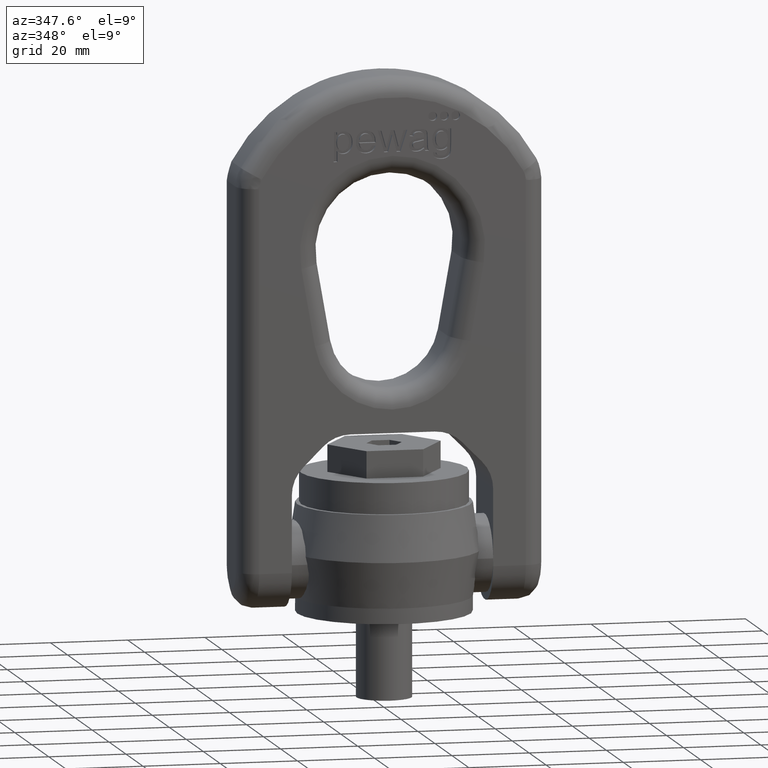
[diagram: clean part render]
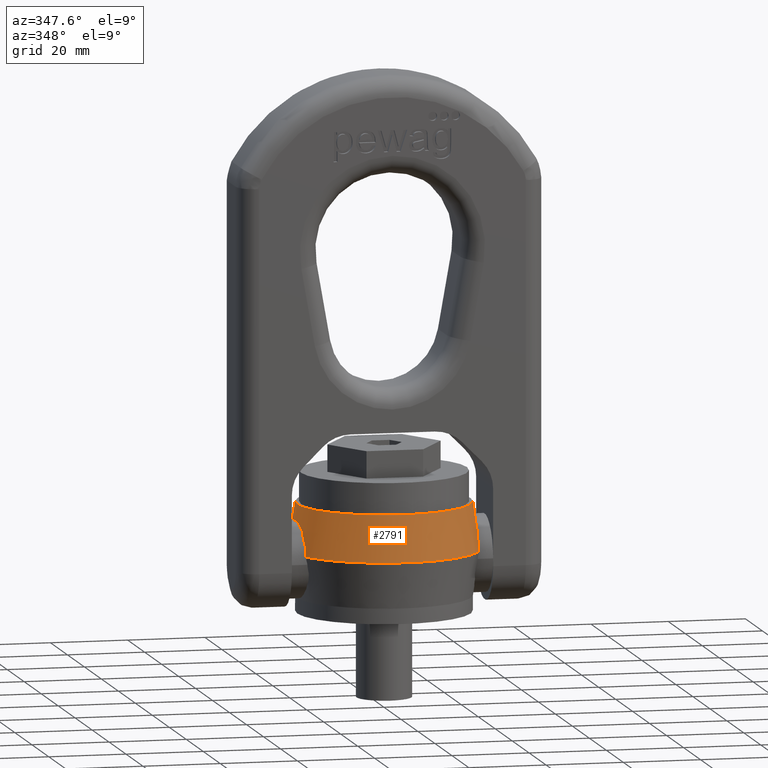
[diagram: same view with one face highlighted and labeled with its STEP entity id]
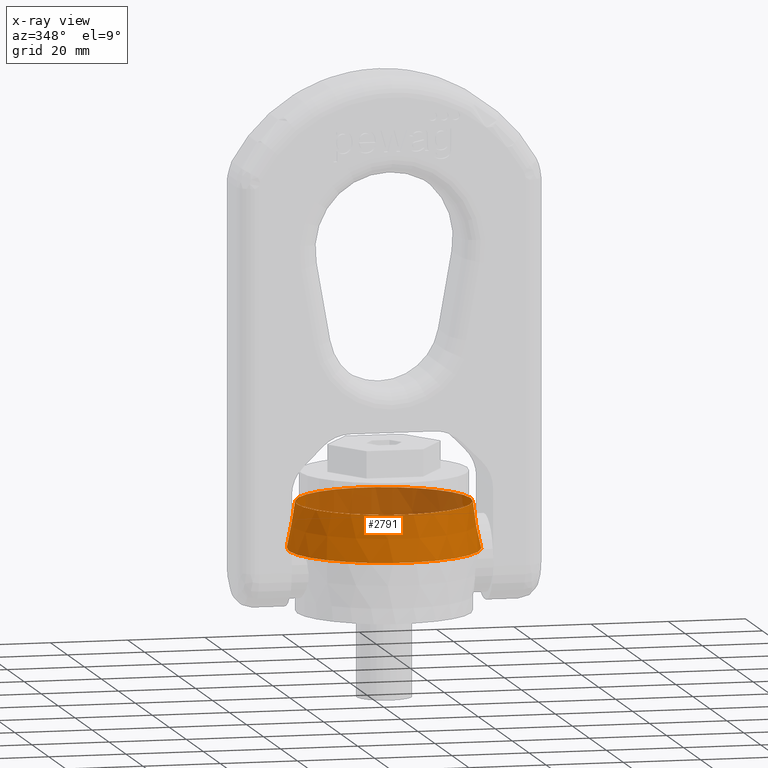
[diagram: x-ray of the same camera — body ghosted, the highlighted face saturated]
A machine part, auxiliary view. The second image highlights one B-rep face of the part: STEP entity #2791.
The next image is the same camera in x-ray: the body ghosted, the highlighted face saturated — about 29% of this face is hidden behind the body in this view.
In plain terms, the highlighted conical surface has half-angle 10 deg.
Its self-contained STEP definition (entity closure, byte-faithful):
#2436=CONICAL_SURFACE('',#5839,24.6159237685016,10.);
#2791=ADVANCED_FACE('',(#3077,#3078),#2436,.T.);
#3077=FACE_BOUND('',#3146,.T.);
#3078=FACE_BOUND('',#3147,.T.);
#3146=EDGE_LOOP('',(#3442));
#3147=EDGE_LOOP('',(#3443));
#3442=ORIENTED_EDGE('',*,*,#5122,.T.);
#3443=ORIENTED_EDGE('',*,*,#5121,.F.);
#4701=VERTEX_POINT('',#6950);
#4702=VERTEX_POINT('',#6953);
#5121=EDGE_CURVE('',#4701,#4701,#5753,.T.);
#5122=EDGE_CURVE('',#4702,#4702,#5754,.T.);
#5753=CIRCLE('',#5836,24.6159237685016);
#5754=CIRCLE('',#5838,22.5);
#5836=AXIS2_PLACEMENT_3D('',#6949,#6082,#6083);
#5838=AXIS2_PLACEMENT_3D('',#6952,#6086,#6087);
#5839=AXIS2_PLACEMENT_3D('',#6954,#6088,#6089);
#6082=DIRECTION('',(0.,0.,-1.));
#6083=DIRECTION('',(-1.,0.,0.));
#6086=DIRECTION('',(0.,0.,-1.));
#6087=DIRECTION('',(-1.,0.,0.));
#6088=DIRECTION('',(0.,0.,-1.));
#6089=DIRECTION('',(-1.,0.,6.90633383842883E-17));
#6949=CARTESIAN_POINT('',(0.,0.,16.));
#6950=CARTESIAN_POINT('',(-24.6159237685016,0.,16.));
#6952=CARTESIAN_POINT('',(0.,0.,28.));
#6953=CARTESIAN_POINT('',(-22.5,0.,28.));
#6954=CARTESIAN_POINT('',(0.,0.,16.));